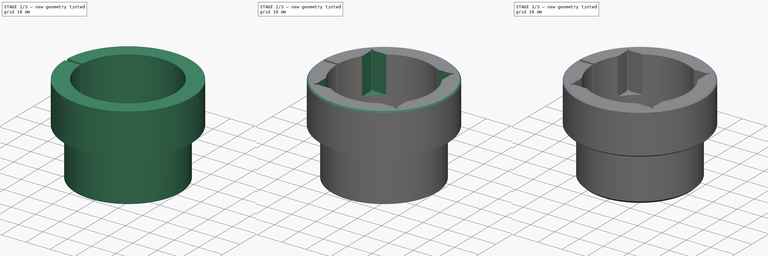
[diagram: build sequence overview — one tinted view per stage of 3, left to right]
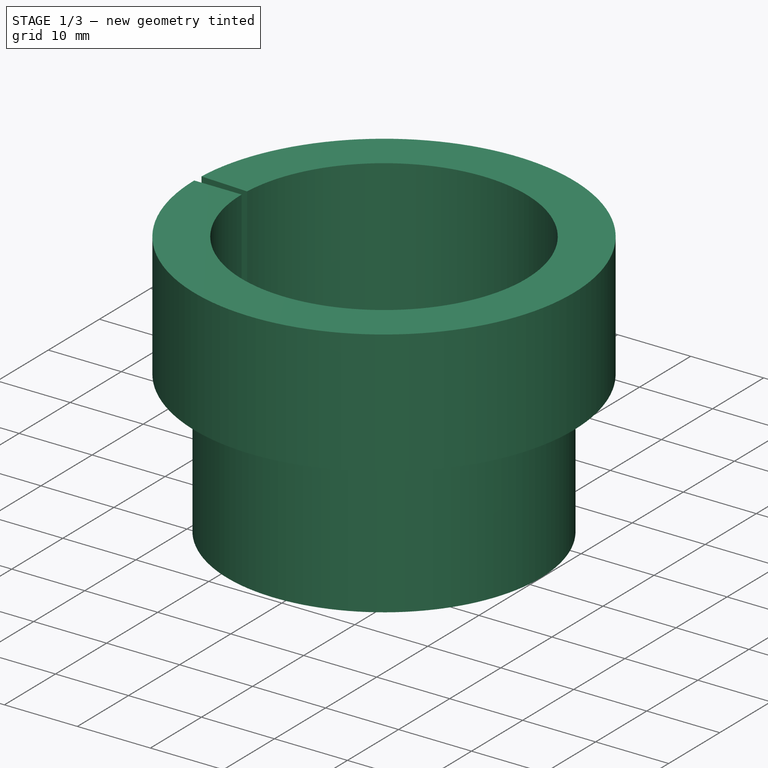
[diagram: stage 1 of 3 — iso view after this stage's code; geometry added in this stage tinted green]
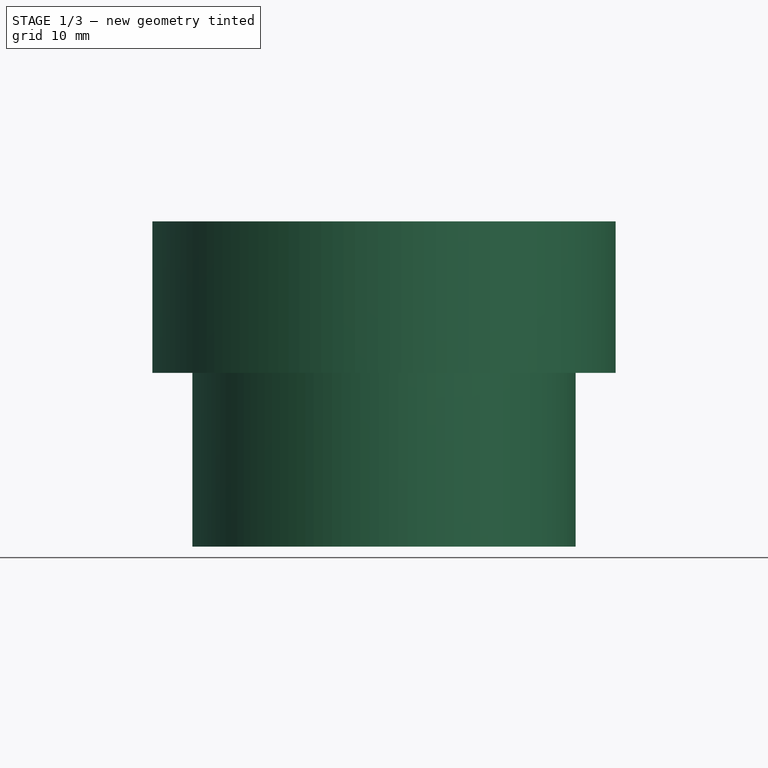
[diagram: stage 1 of 3 — front view after this stage's code; geometry added in this stage tinted green]
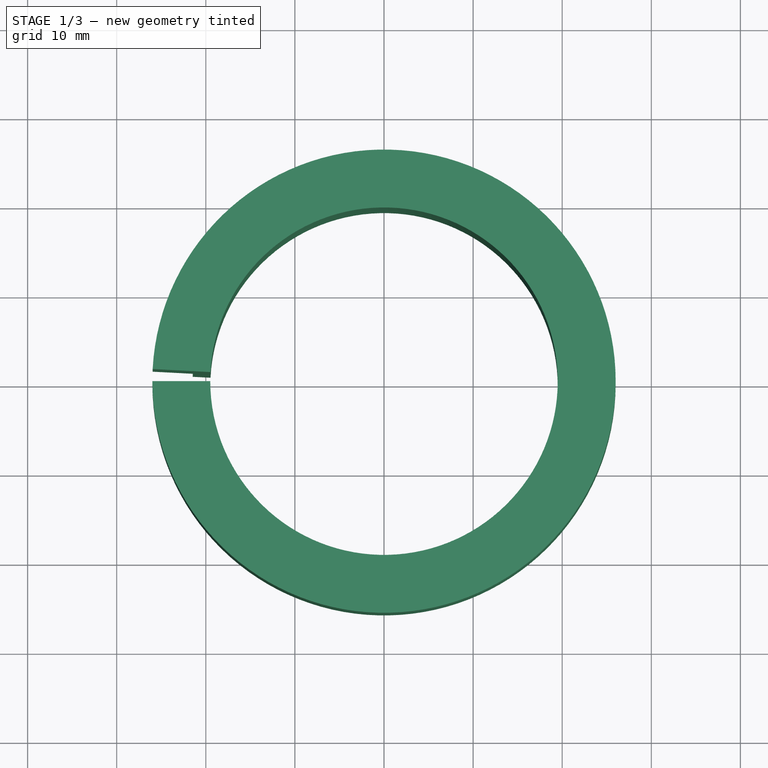
[diagram: stage 1 of 3 — top view after this stage's code; geometry added in this stage tinted green]
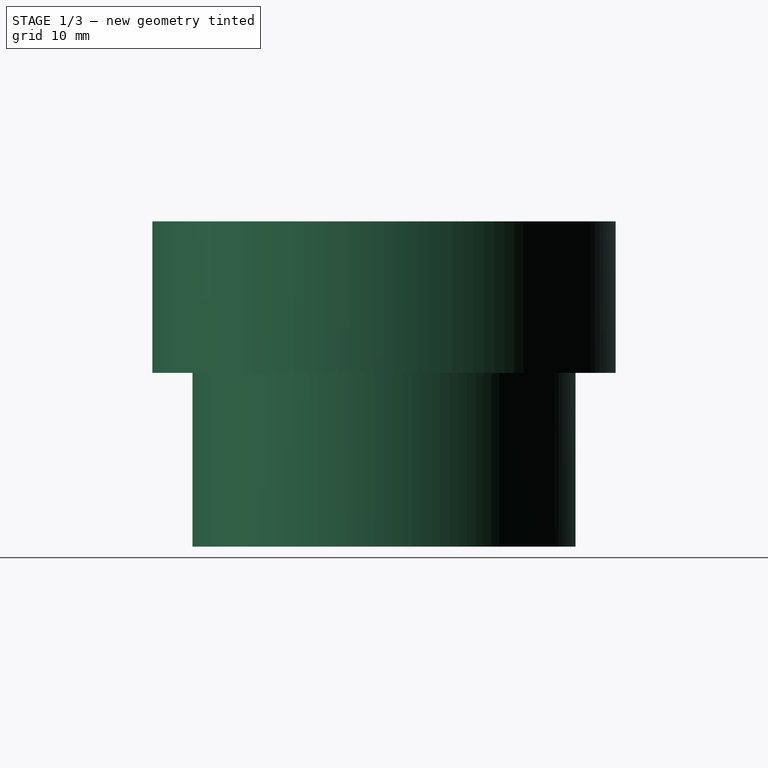
[diagram: stage 1 of 3 — right view after this stage's code; geometry added in this stage tinted green]
FCSTD DOCUMENT  (FreeCAD 0.19R)
Label: laser-mounting-adapter
License: All rights reserved
LicenseURL: http://en.wikipedia.org/wiki/All_rights_reserved
objects: PartDesign::Chamfer×4, Sketcher::SketchObject×3, PartDesign::Pocket×2, Spreadsheet::Sheet×1, PartDesign::Revolution×1, PartDesign::Body×1, App::Part×1
note: 18 computed .brp shape members not serialized (recipe doc carries the construction recipe); baked Part::Feature solids carry a one-line shape summary decoded from their .brp

FEATURE [Sketcher::SketchObject] Sketch
  AttachmentOffset = pos=(0,0,0) rot=(0,0,1;-1.5708rad)
  FullyConstrained = true
  MapMode = 5
  Placement = pos=(0,0,0) rot=(-0.57735,-0.57735,0.57735;4.18879rad)
  Support = -> [XZ_Plane001]
  expr: Constraints[16] = <<Params>>.HolderDepth
  expr: Constraints[15] = <<Params>>.RegistrationOD / 2
  expr: Constraints[14] = <<Params>>.RegistrationHeight
  expr: Constraints[4] = <<Params>>.HolderOD / 2
  sketch-geometry (6):
    g0: LineSegment StartX=-36.5 StartY=0 StartZ=0 EndX=0 EndY=0 EndZ=0
    g1: LineSegment StartX=0 StartY=0 StartZ=0 EndX=0 EndY=-21.5 EndZ=0
    g2: LineSegment StartX=0 StartY=-21.5 StartZ=0 EndX=-19.5 EndY=-21.5 EndZ=0
    g3: LineSegment StartX=-19.5 StartY=-21.5 StartZ=0 EndX=-19.5 EndY=-26 EndZ=0
    g4: LineSegment StartX=-19.5 StartY=-26 StartZ=0 EndX=-36.5 EndY=-26 EndZ=0
    g5: LineSegment StartX=-36.5 StartY=-26 StartZ=0 EndX=-36.5 EndY=0 EndZ=0
  constraints (18):
    c: PointOnObject(g0,g-1)
    c: PointOnObject(g0,g-1)
    c: Coincident(g1,g0)
    c: Vertical(g1)
    c: Distance(g1) = 21.5
    c: Coincident(g2,g1)
    c: Horizontal(g2)
    c: Coincident(g3,g2)
    c: Vertical(g3)
    c: Coincident(g4,g3)
    c: Horizontal(g4)
    c: Coincident(g5,g4)
    c: Coincident(g5,g0)
    c: Vertical(g5)
    c: Distance(g4) = 17
    c: Distance(g5) = 26
    c: Distance(g2) = 19.5
    c: PointOnObject(g0,g-2)
FEATURE [Spreadsheet::Sheet] Spreadsheet  label="Params"
  cells = A1=Param name; B1=Value; A2=Holder OD; B2(HolderOD)=43; C2=43,5 mm would probably be better, this is a bit loose; A3=Holder depth; B3(HolderDepth)=19.5; A4=Holder Wall Thickness; B4(HolderWall)=2; A5=Laser Width; B5(LaserWidth)=32.95; A6=Laser Height; B6(LaserHeight)=32.95; A7=Registration OD; B7(RegistrationOD)=52; A8=Registration Height; B8(RegistrationHeight)=17; C8=(this - holder wall thickness) needs to hold laser; A9=Slit angle; B9(SlitAngle)=3
FEATURE [PartDesign::Revolution] Revolution
  Angle = 357
  Axis = (-2e-16,2e-16,-1)
  Base = (0,0,0)
  Placement = pos=(0,0,0) rot=(1,0,0;1.5708rad)
  Profile = -> Sketch
  ReferenceAxis = -> Sketch [H_Axis]
  Reversed = true
  expr: Angle = 360 - <<Params>>.SlitAngle
FEATURE [Sketcher::SketchObject] Sketch001
  AttachmentOffset = pos=(0,0,36.5) rot=(0,0,1;0rad)
  FullyConstrained = true
  MapMode = 5
  Placement = pos=(0,0,36.5) rot=(0,0,1;0rad)
  Support = -> [XY_Plane001]
  expr: .AttachmentOffset.Base.z = <<Params>>.HolderDepth + <<Params>>.RegistrationHeight
  expr: Constraints[10] = <<Params>>.LaserHeight
  expr: Constraints[9] = <<Params>>.LaserWidth
  sketch-geometry (18):
    g0: LineSegment StartX=-16.475 StartY=-16.475 StartZ=0 EndX=16.475 EndY=-16.475 EndZ=0
    g1: LineSegment StartX=16.475 StartY=-16.475 StartZ=0 EndX=16.475 EndY=16.475 EndZ=0
    g2: LineSegment StartX=16.475 StartY=16.475 StartZ=0 EndX=-16.475 EndY=16.475 EndZ=0
    g3: LineSegment StartX=-16.475 StartY=16.475 StartZ=0 EndX=-16.475 EndY=-16.475 EndZ=0
    g4: Circle CenterX=-16.475 CenterY=16.475 CenterZ=0 NormalX=0 NormalY=0 NormalZ=1 AngleXU=0 Radius=0.5
    g5: GeomPoint X=-15.975 Y=16.475 Z=0
    g6: GeomPoint X=-16.475 Y=15.975 Z=0
    g7: ArcOfCircle CenterX=-16.475 CenterY=16.475 CenterZ=0 NormalX=0 NormalY=0 NormalZ=1 AngleXU=0 Radius=0.5 StartAngle=-2.7e-15 EndAngle=4.71239
    g8: Circle CenterX=16.475 CenterY=16.475 CenterZ=0 NormalX=0 NormalY=0 NormalZ=1 AngleXU=0 Radius=0.5
    g9: Circle CenterX=-16.475 CenterY=-16.475 CenterZ=0 NormalX=0 NormalY=0 NormalZ=1 AngleXU=0 Radius=0.5
    g10: Circle CenterX=16.475 CenterY=-16.475 CenterZ=0 NormalX=0 NormalY=0 NormalZ=1 AngleXU=0 Radius=0.5
    g11: ArcOfCircle CenterX=16.475 CenterY=16.475 CenterZ=0 NormalX=0 NormalY=0 NormalZ=1 AngleXU=0 Radius=0.5 StartAngle=4.71239 EndAngle=9.42478
    g12: LineSegment StartX=15.975 StartY=16.475 StartZ=0 EndX=-15.975 EndY=16.475 EndZ=0
    g13: ArcOfCircle CenterX=-16.475 CenterY=-16.475 CenterZ=0 NormalX=0 NormalY=0 NormalZ=1 AngleXU=0 Radius=0.5 StartAngle=1.5708 EndAngle=6.28319
    g14: ArcOfCircle CenterX=16.475 CenterY=-16.475 CenterZ=0 NormalX=0 NormalY=0 NormalZ=1 AngleXU=0 Radius=0.5 StartAngle=3.14159 EndAngle=7.85398
    g15: LineSegment StartX=16.475 StartY=15.975 StartZ=0 EndX=16.475 EndY=-15.975 EndZ=0
    g16: LineSegment StartX=15.975 StartY=-16.475 StartZ=0 EndX=-15.975 EndY=-16.475 EndZ=0
    g17: LineSegment StartX=-16.475 StartY=-15.975 StartZ=0 EndX=-16.475 EndY=15.975 EndZ=0
  constraints (45):
    c: Coincident(g0,g1)
    c: Coincident(g1,g2)
    c: Coincident(g2,g3)
    c: Coincident(g3,g0)
    c: Horizontal(g0)
    c: Horizontal(g2)
    c: Vertical(g1)
    c: Vertical(g3)
    c: Symmetric(g0,g1,g-1)
    c: Distance(g0) = 32.95
    c: Distance(g1) = 32.95
    c: Coincident(g4,g2)
    c: Diameter(g4) = 1
    c: PointOnObject(g5,g2)
    c: PointOnObject(g5,g4)
    c: PointOnObject(g6,g3)
    c: Coincident(g7,g2)
    c: Coincident(g7,g6)
    c: Coincident(g7,g5)
    c: Equal(g4,g8) = 0.5
    c: Coincident(g8,g1)
    c: Equal(g4,g9) = 0.5
    c: Coincident(g9,g0)
    c: Equal(g4,g10) = 0.5
    c: Coincident(g10,g0)
    c: Coincident(g11,g1)
    c: PointOnObject(g11,g2)
    c: PointOnObject(g11,g1)
    c: PointOnObject(g11,g8)
    c: Coincident(g12,g11)
    c: Coincident(g12,g7)
    c: Coincident(g13,g0)
    c: PointOnObject(g13,g9)
    c: PointOnObject(g13,g0)
    c: PointOnObject(g13,g3)
    c: Coincident(g14,g0)
    c: PointOnObject(g14,g10)
    c: PointOnObject(g14,g1)
    c: PointOnObject(g14,g0)
    c: Coincident(g15,g11)
    c: Coincident(g16,g14)
    c: Coincident(g16,g13)
    c: Coincident(g17,g13)
    c: Coincident(g17,g7)
    c: Coincident(g15,g14)
FEATURE [Sketcher::SketchObject] Sketch002
  FullyConstrained = true
  MapMode = 5
  Support = -> [XY_Plane001]
  expr: Constraints[1] = <<Params>>.HolderOD - 2 * <<Params>>.HolderWall
  sketch-geometry (1):
    g0: Circle CenterX=0 CenterY=0 CenterZ=0 NormalX=0 NormalY=0 NormalZ=1 AngleXU=0 Radius=19.5
  constraints (2):
    c: Coincident(g0,g-1)
    c: Diameter(g0) = 39
FEATURE [PartDesign::Pocket] Pocket
  BaseFeature = -> Revolution
  Length = 19.5
  Length2 = 100
  Placement = pos=(0,0,0) rot=(1,0,0;1.5708rad)
  Profile = -> Sketch002
  Reversed = true
  Type = 1
  expr: Length = <<Params>>.HolderDepth
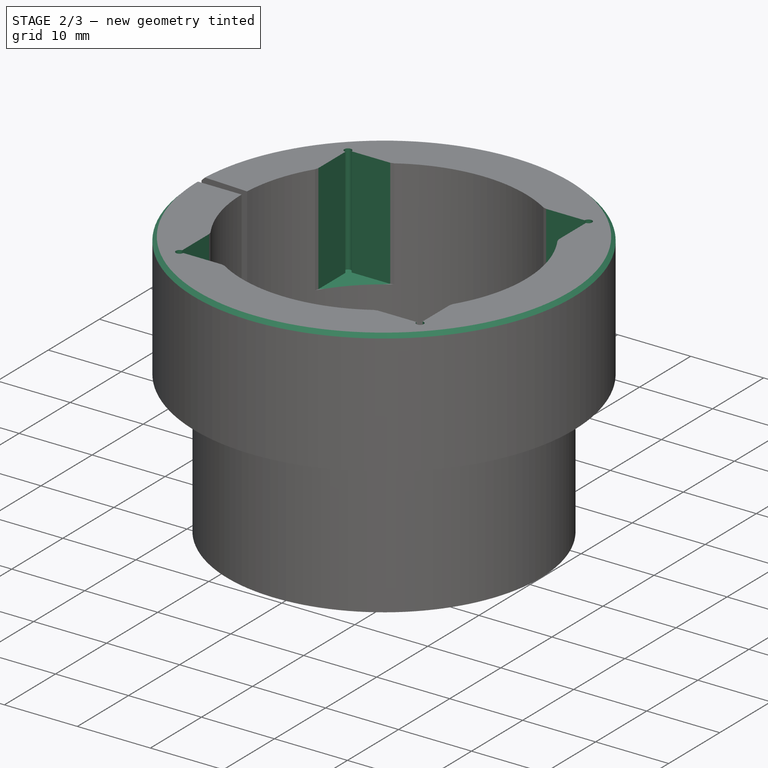
[diagram: stage 2 of 3 — iso view after this stage's code; geometry added in this stage tinted green]
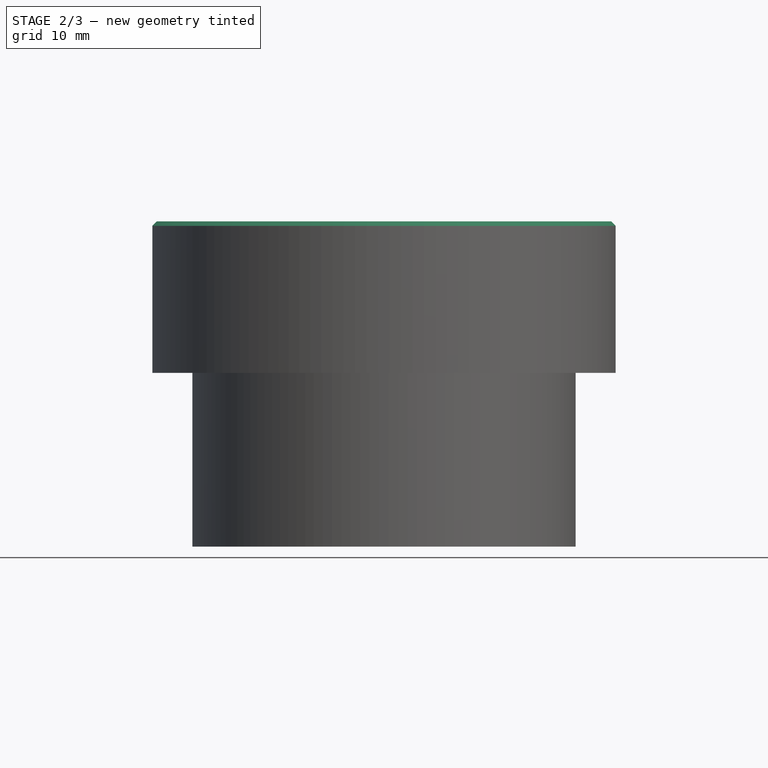
[diagram: stage 2 of 3 — front view after this stage's code; geometry added in this stage tinted green]
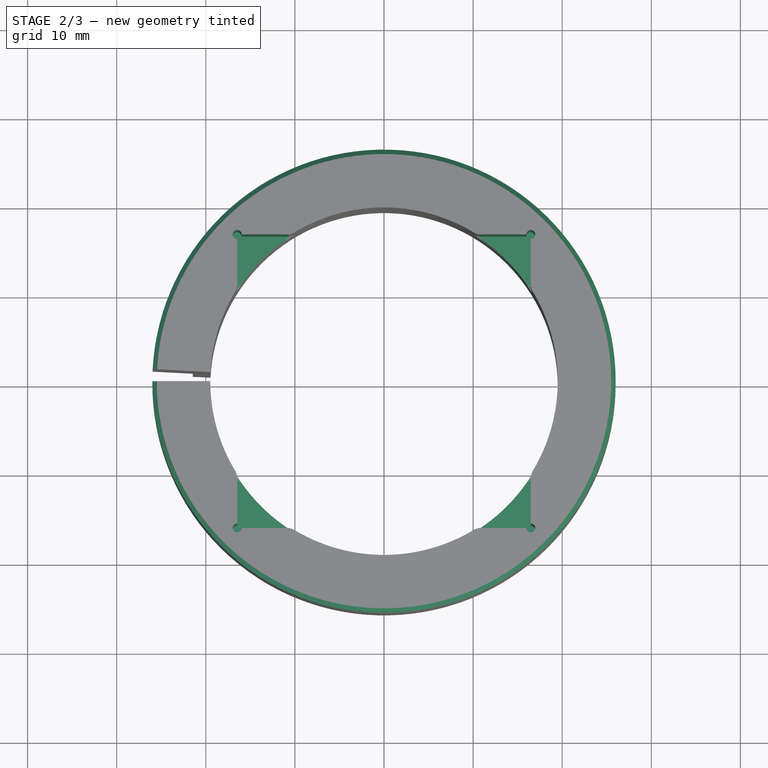
[diagram: stage 2 of 3 — top view after this stage's code; geometry added in this stage tinted green]
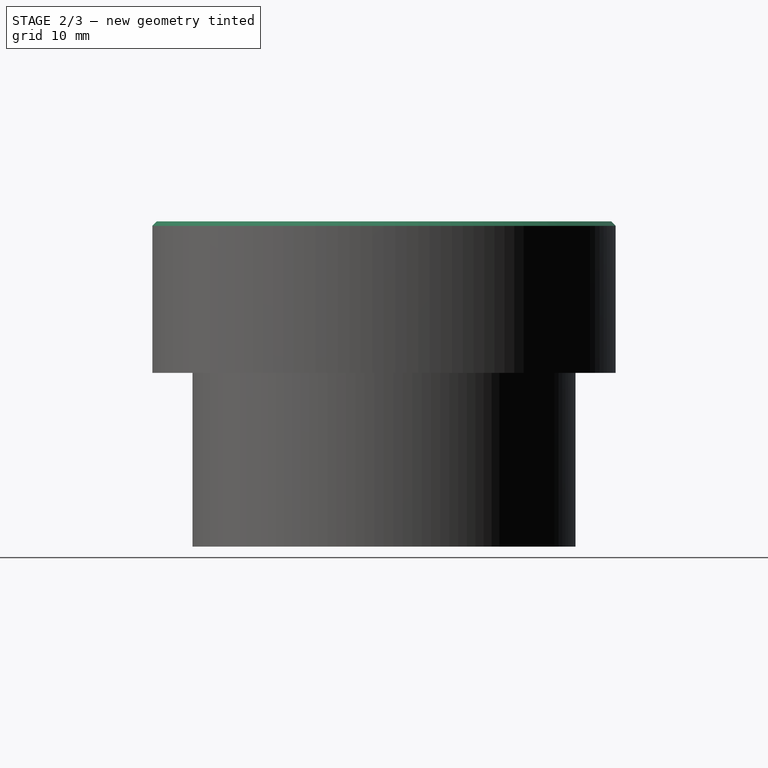
[diagram: stage 2 of 3 — right view after this stage's code; geometry added in this stage tinted green]
FEATURE [PartDesign::Pocket] Pocket001
  BaseFeature = -> Pocket
  Length = 15
  Length2 = 100
  Placement = pos=(0,0,0) rot=(1,0,0;1.5708rad)
  Profile = -> Sketch001
  Type = 0
  expr: Length = <<Params>>.RegistrationHeight - <<Params>>.HolderWall
FEATURE [PartDesign::Chamfer] Chamfer
  Angle = 45
  Base = -> Pocket001 [Edge30,Edge28,Edge26,Edge24,Edge14,Edge16,Edge18,Edge20]
  BaseFeature = -> Pocket001
  ChamferType = 0
  FlipDirection = false
  Placement = pos=(0,0,0) rot=(1,0,0;1.5708rad)
  Size = 0.25
  Size2 = 1
  SupportTransform = false
FEATURE [PartDesign::Chamfer] Chamfer001
  Angle = 45
  Base = -> Chamfer [Edge21]
  BaseFeature = -> Chamfer
  ChamferType = 0
  FlipDirection = false
  Placement = pos=(0,0,0) rot=(1,0,0;1.5708rad)
  Size = 0.5
  Size2 = 1
  SupportTransform = false
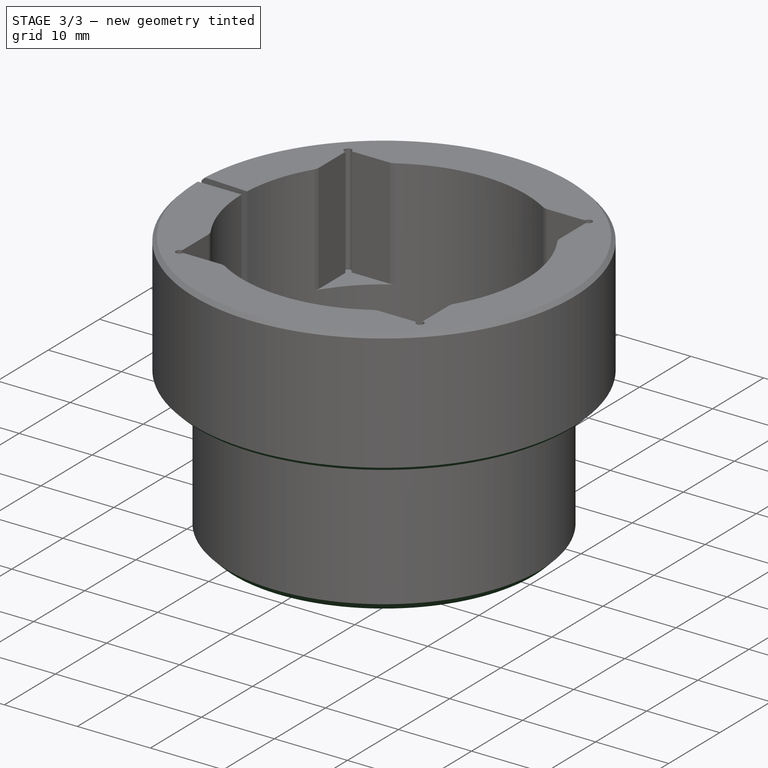
[diagram: stage 3 of 3 — iso view after this stage's code; geometry added in this stage tinted green]
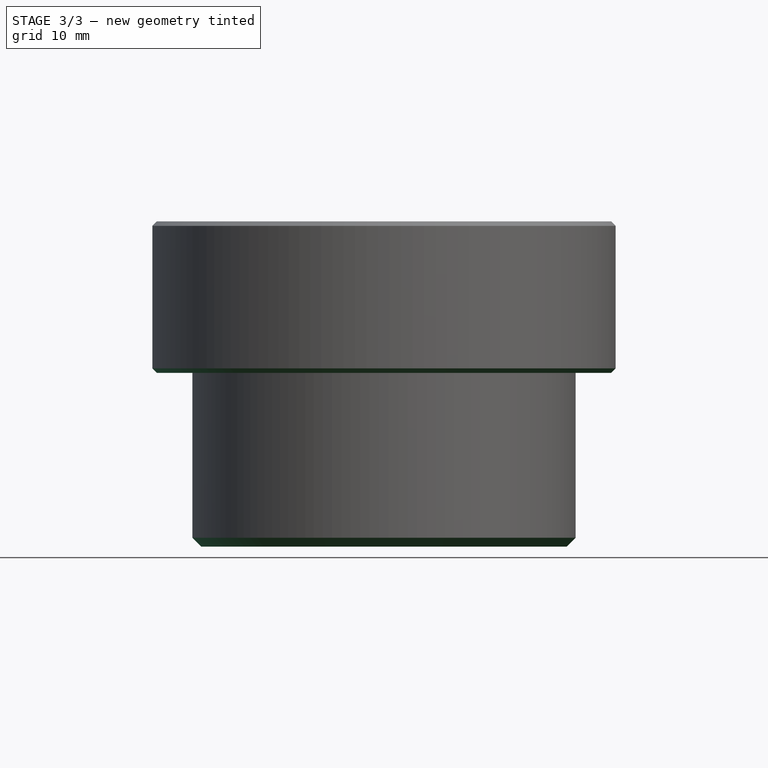
[diagram: stage 3 of 3 — front view after this stage's code; geometry added in this stage tinted green]
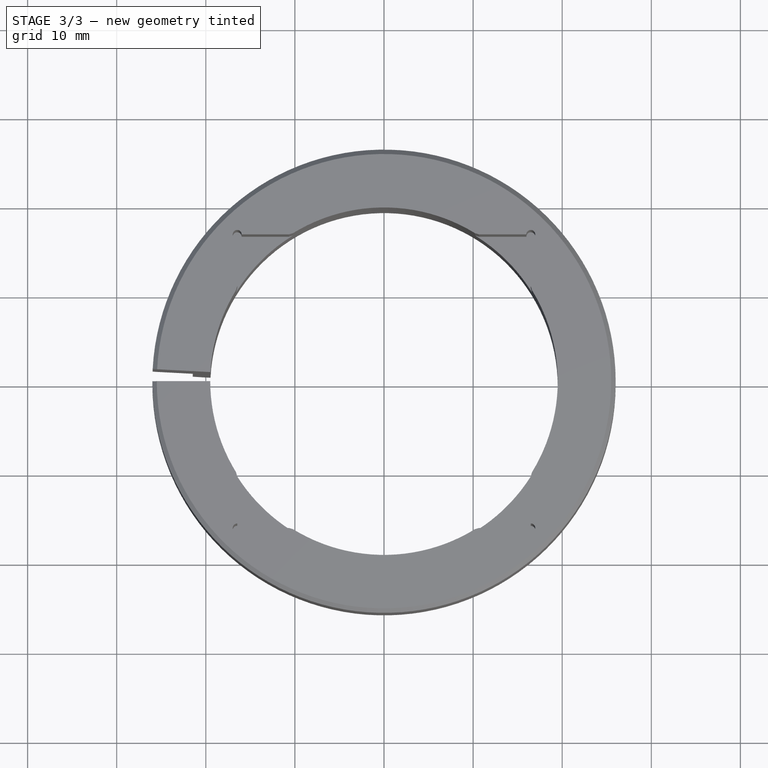
[diagram: stage 3 of 3 — top view after this stage's code; geometry added in this stage tinted green]
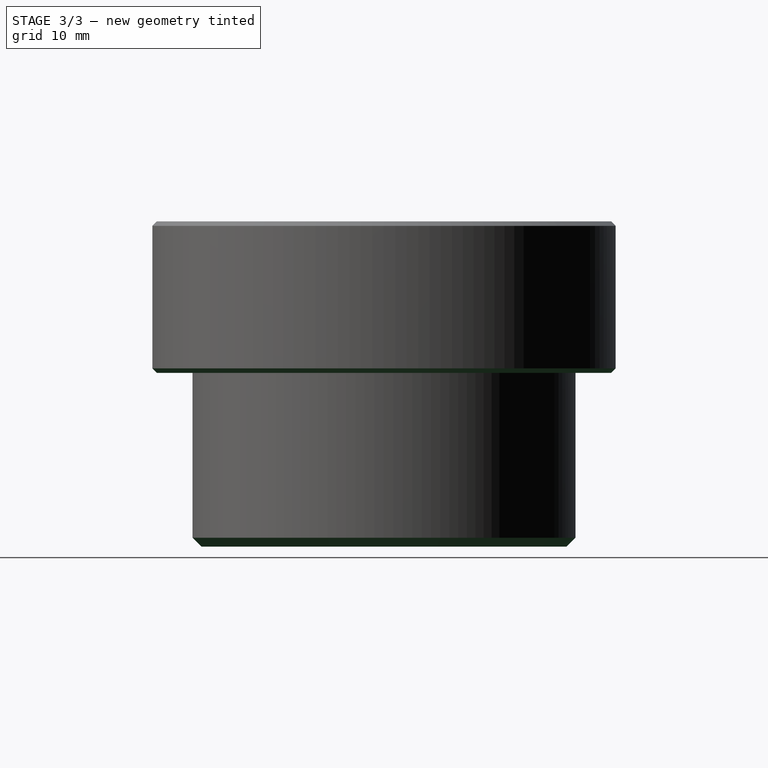
[diagram: stage 3 of 3 — right view after this stage's code; geometry added in this stage tinted green]
FEATURE [PartDesign::Chamfer] Chamfer002
  Angle = 45
  Base = -> Chamfer001 [Edge102]
  BaseFeature = -> Chamfer001
  ChamferType = 0
  FlipDirection = false
  Placement = pos=(0,0,0) rot=(1,0,0;1.5708rad)
  Size = 0.5
  Size2 = 1
  SupportTransform = false
FEATURE [PartDesign::Chamfer] Chamfer003
  Angle = 45
  Base = -> Chamfer002 [Edge45]
  BaseFeature = -> Chamfer002
  ChamferType = 0
  FlipDirection = false
  Placement = pos=(0,0,0) rot=(1,0,0;1.5708rad)
  Size = 1
  Size2 = 1
  SupportTransform = false
FEATURE [PartDesign::Body] Body
  Group = -> [Sketch,Revolution,Sketch002,Pocket,Sketch001,Pocket001,Chamfer,Chamfer001,Chamfer002,Chamfer003]
  Origin = -> Origin001
  Tip = -> Chamfer003
FEATURE [App::Part] Part
  Group = -> [Body]
  Origin = -> Origin
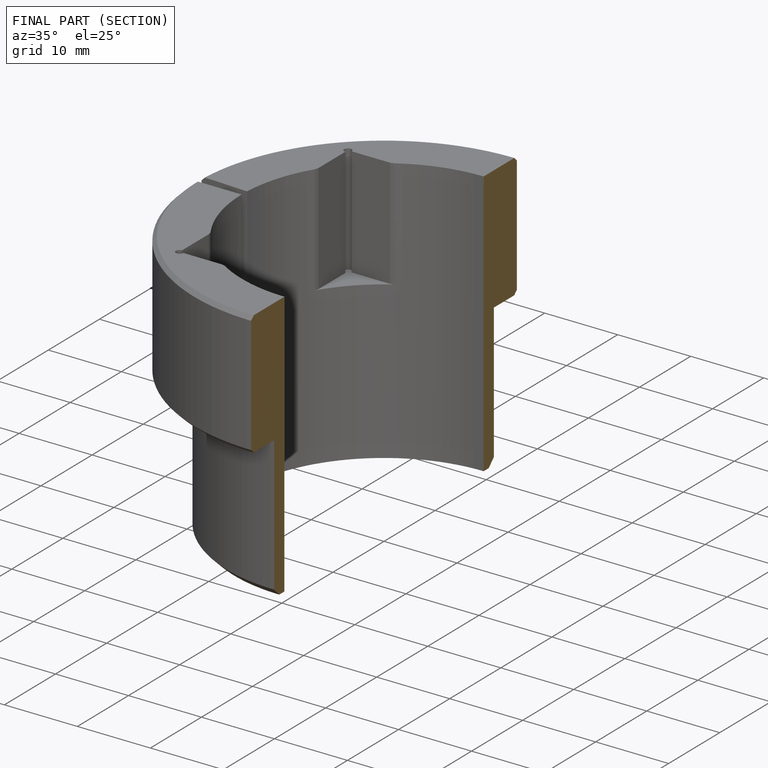
[diagram: finished part — half-section view (interior)]
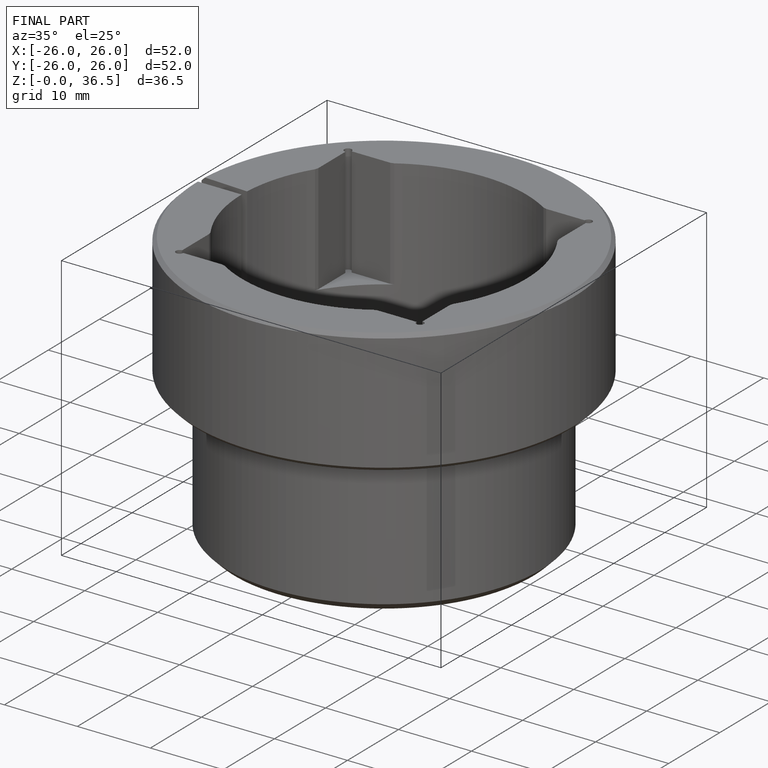
[diagram: finished part — iso view with bounding-box wireframe]
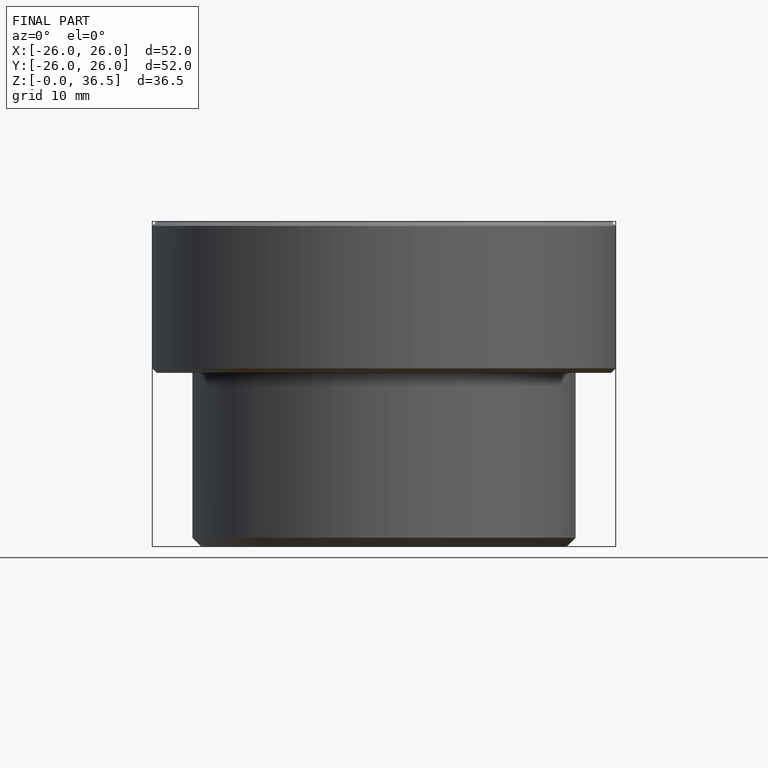
[diagram: finished part — front view with bounding-box wireframe]
